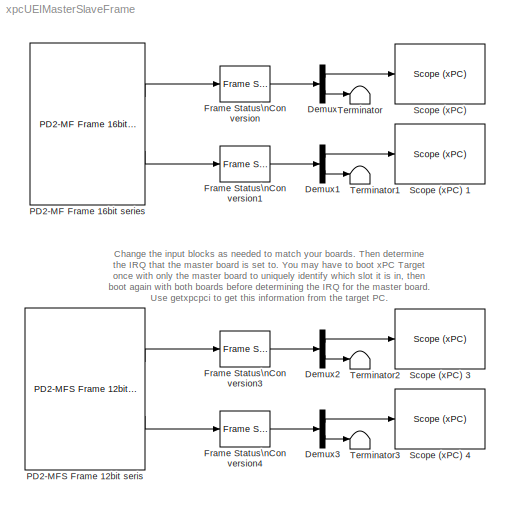
MODEL xpcUEIMasterSlaveFrame
KIND model
BLOCK [Demux] Demux
  Outputs = [1 -1]
  Ports = [1, 2]
BLOCK [Demux] Demux1
  Outputs = [1 -1]
  Ports = [1, 2]
BLOCK [Demux] Demux2
  Outputs = [1 -1]
  Ports = [1, 2]
BLOCK [Demux] Demux3
  Outputs = [1 -1]
  Ports = [1, 2]
BLOCK [Reference] Frame Status\nConversion  REF=dspsigattribs/Frame Status\nConversion
  Ports = [1, 1]
  ShowPortLabels = off
  SourceBlock = dspsigattribs/Frame Status\nConversion
  SourceType = Frame Status Conversion
  growRefPort = off
  outframe = Sample-based
BLOCK [Reference] Frame Status\nConversion1  REF=dspsigattribs/Frame Status\nConversion
  Ports = [1, 1]
  ShowPortLabels = off
  SourceBlock = dspsigattribs/Frame Status\nConversion
  SourceType = Frame Status Conversion
  growRefPort = off
  outframe = Sample-based
BLOCK [Reference] Frame Status\nConversion3  REF=dspsigattribs/Frame Status\nConversion
  Ports = [1, 1]
  ShowPortLabels = off
  SourceBlock = dspsigattribs/Frame Status\nConversion
  SourceType = Frame Status Conversion
  growRefPort = off
  outframe = Sample-based
BLOCK [Reference] Frame Status\nConversion4  REF=dspsigattribs/Frame Status\nConversion
  Ports = [1, 1]
  ShowPortLabels = off
  SourceBlock = dspsigattribs/Frame Status\nConversion
  SourceType = Frame Status Conversion
  growRefPort = off
  outframe = Sample-based
BLOCK [Reference] PD2-MF Frame 16bit series   REF=xpclib/A//D\nFrame/UEI/PD2-MF Frame 16bit series 
  Ports = [0, 2]
  SourceBlock = xpclib/A//D\nFrame/UEI/PD2-MF Frame 16bit series
  SourceType = ueipd2mf16_ad_16
  boardtypein = PD2-MF-16-333/16H
  burst = 32
  channel = [1 2]
  clsource = Internal
  framesize = 32
  frametime = 0.001
  freq = -1
  gain = [1]
  mux = [0]
  outfmt = Frame (Signal Processing blockset needed)
  pcislot = -1
  range = +- 10 Volts
  sampletime = off
  scantime = -1
  sediff = Single Ended
  slave = off
BLOCK [Reference] PD2-MFS Frame 12bit seris   REF=xpclib/A//D\nFrame/UEI/PD2-MFS Frame 12bit series 
  Ports = [0, 2]
  SourceBlock = xpclib/A//D\nFrame/UEI/PD2-MFS Frame 12bit series
  SourceType = ueipd2mfs12_ad_15
  boardtypein = PD2-MFS-8-1M/12H
  burst = 32
  channel = [1 2]
  clsource = Internal
  framesize = 32
  frametime = 0.001
  freq = -1
  gain = [1]
  mux = [0]
  outfmt = Frame (Signal Processing blockset needed)
  pcislot = -1
  range = +- 10 Volts
  sampletime = off
  scantime = -1
  slave = off
BLOCK [Reference] Scope (xPC)   REF=xpclib/Misc./Scope (xPC) 
  Ports = [1]
  ShowPortLabels = on
  SourceBlock = xpclib/Misc./Scope (xPC)
  SourceType = xpcscopeblock
  autorestart = off
  autostart = on
  filename = data.dat
  formatstr = '%15.6f'
  grid = on
  interleave = 1
  mode = Lazy
  noprepostsamples = 0
  nosamples = 500
  scopeno = 1
  scopetype = Target
  triggerlevel = 0.0
  triggermode = FreeRun
  triggersample = 0
  triggerscope = 1
  triggersignal = 1
  triggerslope = Either
  viewmode = Graphical redraw
  writesize = 512
  ylimits = [0,0]
BLOCK [Reference] Scope (xPC) 1  REF=xpclib/Misc./Scope (xPC) 
  Ports = [1]
  ShowPortLabels = on
  SourceBlock = xpclib/Misc./Scope (xPC)
  SourceType = xpcscopeblock
  autorestart = off
  autostart = on
  filename = data.dat
  formatstr = '%15.6f'
  grid = on
  interleave = 1
  mode = Lazy
  noprepostsamples = 0
  nosamples = 500
  scopeno = 2
  scopetype = Target
  triggerlevel = 0.0
  triggermode = FreeRun
  triggersample = 0
  triggerscope = 1
  triggersignal = 1
  triggerslope = Either
  viewmode = Graphical redraw
  writesize = 512
  ylimits = [0,0]
BLOCK [Reference] Scope (xPC) 3  REF=xpclib/Misc./Scope (xPC) 
  Ports = [1]
  ShowPortLabels = on
  SourceBlock = xpclib/Misc./Scope (xPC)
  SourceType = xpcscopeblock
  autorestart = off
  autostart = on
  filename = data.dat
  formatstr = '%15.6f'
  grid = on
  interleave = 1
  mode = Lazy
  noprepostsamples = 0
  nosamples = 500
  scopeno = 4
  scopetype = Target
  triggerlevel = 0.0
  triggermode = FreeRun
  triggersample = 0
  triggerscope = 1
  triggersignal = 1
  triggerslope = Either
  viewmode = Graphical redraw
  writesize = 512
  ylimits = [0,0]
BLOCK [Reference] Scope (xPC) 4  REF=xpclib/Misc./Scope (xPC) 
  Ports = [1]
  ShowPortLabels = on
  SourceBlock = xpclib/Misc./Scope (xPC)
  SourceType = xpcscopeblock
  autorestart = off
  autostart = on
  filename = data.dat
  formatstr = '%15.6f'
  grid = on
  interleave = 1
  mode = Lazy
  noprepostsamples = 0
  nosamples = 500
  scopeno = 5
  scopetype = Target
  triggerlevel = 0.0
  triggermode = FreeRun
  triggersample = 0
  triggerscope = 1
  triggersignal = 1
  triggerslope = Either
  viewmode = Graphical redraw
  writesize = 512
  ylimits = [0,0]
BLOCK [Terminator] Terminator
BLOCK [Terminator] Terminator1
BLOCK [Terminator] Terminator2
BLOCK [Terminator] Terminator3
ANNOTATION (root): Change the input blocks as needed to match your boards. Then determine\nthe IRQ that the master board is set to. You may have to boot xPC Target\nonce with only the master board to uniquely identify which slot it is in, then\nboot again with both boards before determining the IRQ for the master board.\nUse getxpcpci to get this information from the target PC.
LINE Demux1:1 -> Scope (xPC) 1:1
LINE Demux1:2 -> Terminator1:1
LINE Demux2:1 -> Scope (xPC) 3:1
LINE Demux2:2 -> Terminator2:1
LINE Demux3:1 -> Scope (xPC) 4:1
LINE Demux3:2 -> Terminator3:1
LINE Demux:1 -> Scope (xPC) :1
LINE Demux:2 -> Terminator:1
LINE Frame Status\nConversion1:1 -> Demux1:1
LINE Frame Status\nConversion3:1 -> Demux2:1
LINE Frame Status\nConversion4:1 -> Demux3:1
LINE Frame Status\nConversion:1 -> Demux:1
LINE PD2-MF Frame 16bit series :1 -> Frame Status\nConversion:1
LINE PD2-MF Frame 16bit series :2 -> Frame Status\nConversion1:1
LINE PD2-MFS Frame 12bit seris :1 -> Frame Status\nConversion3:1
LINE PD2-MFS Frame 12bit seris :2 -> Frame Status\nConversion4:1
